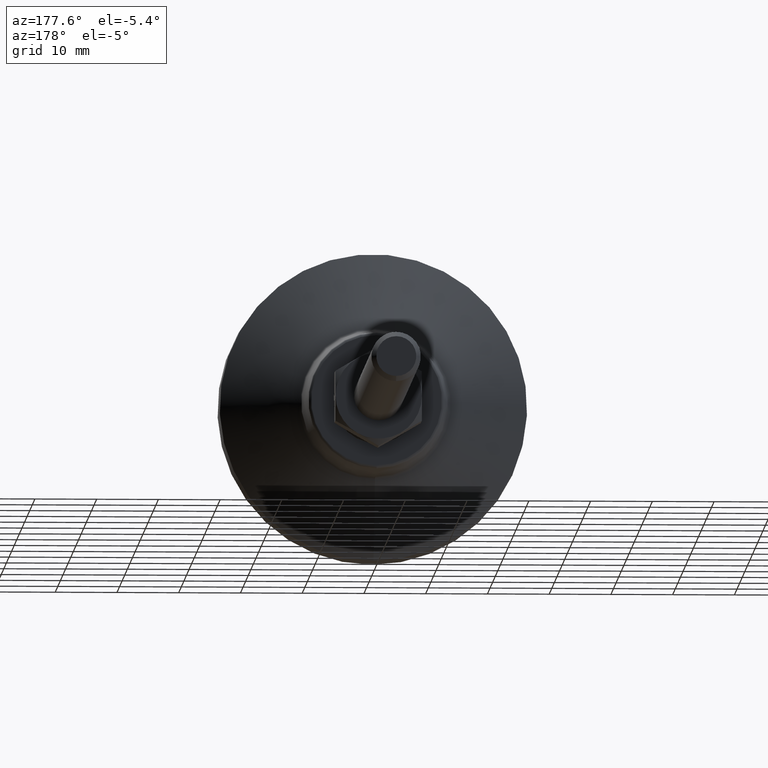
[diagram: clean part render]
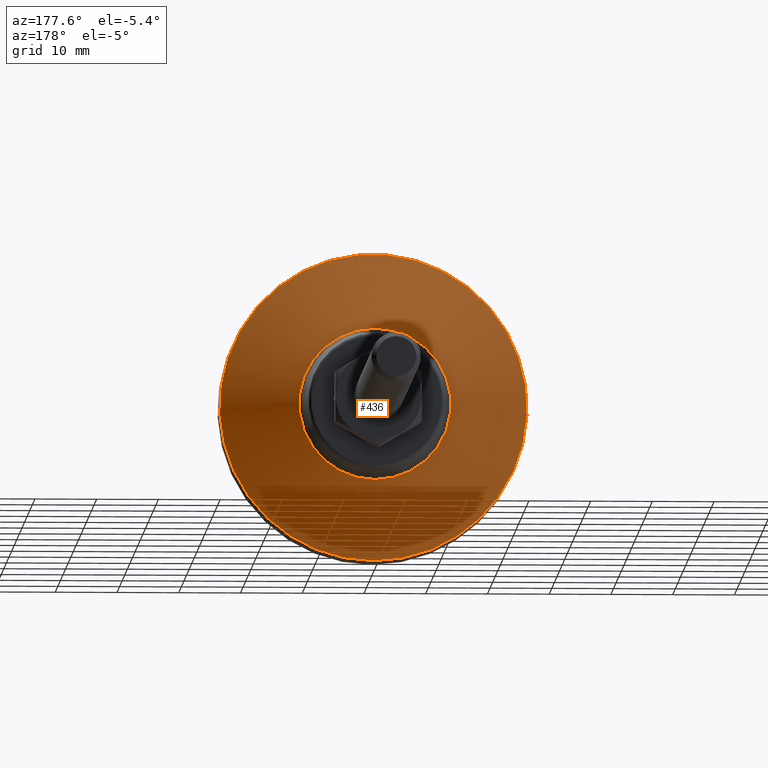
[diagram: same view with one face highlighted and labeled with its STEP entity id]
A machine part, auxiliary view. The second image highlights one B-rep face of the part: STEP entity #436.
In plain terms, the highlighted conical surface has half-angle 63.338 deg.
Its self-contained STEP definition (entity closure, byte-faithful):
#67=CONICAL_SURFACE('',#481,12.2943067828115,1.10544951728791);
#95=FACE_BOUND('',#151,.T.);
#110=FACE_OUTER_BOUND('',#150,.T.);
#150=EDGE_LOOP('',(#318));
#151=EDGE_LOOP('',(#319));
#192=CIRCLE('',#480,12.2943067828115);
#193=CIRCLE('',#482,24.8952696104307);
#218=VERTEX_POINT('',#690);
#219=VERTEX_POINT('',#693);
#256=EDGE_CURVE('',#218,#218,#192,.T.);
#257=EDGE_CURVE('',#219,#219,#193,.T.);
#318=ORIENTED_EDGE('',*,*,#257,.F.);
#319=ORIENTED_EDGE('',*,*,#256,.T.);
#436=ADVANCED_FACE('',(#110,#95),#67,.T.);
#480=AXIS2_PLACEMENT_3D('',#691,#560,#561);
#481=AXIS2_PLACEMENT_3D('',#692,#562,#563);
#482=AXIS2_PLACEMENT_3D('',#694,#564,#565);
#560=DIRECTION('center_axis',(0.,-1.,0.));
#561=DIRECTION('ref_axis',(0.,0.,-1.));
#562=DIRECTION('center_axis',(0.,-1.,0.));
#563=DIRECTION('ref_axis',(0.,0.,-1.));
#564=DIRECTION('center_axis',(0.,-1.,0.));
#565=DIRECTION('ref_axis',(0.,0.,-1.));
#690=CARTESIAN_POINT('',(0.,12.8272686510528,-12.2943067828115));
#691=CARTESIAN_POINT('Origin',(0.,12.8272686510528,0.));
#692=CARTESIAN_POINT('Origin',(0.,12.8272686510528,0.));
#693=CARTESIAN_POINT('',(0.,6.5,-24.8952696104307));
#694=CARTESIAN_POINT('Origin',(0.,6.5,0.));